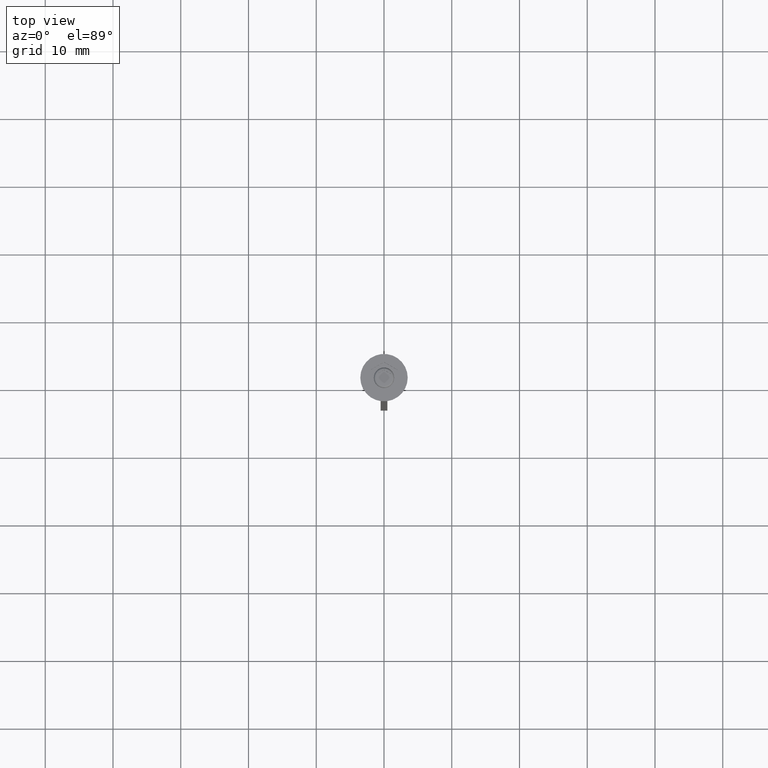
[diagram: clean part render]
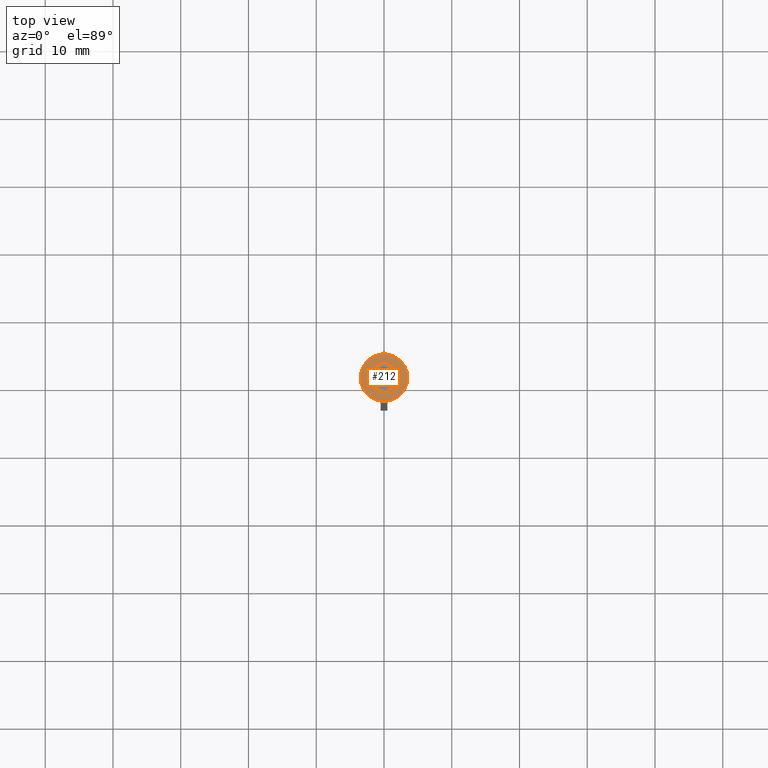
[diagram: same view with one face highlighted and labeled with its STEP entity id]
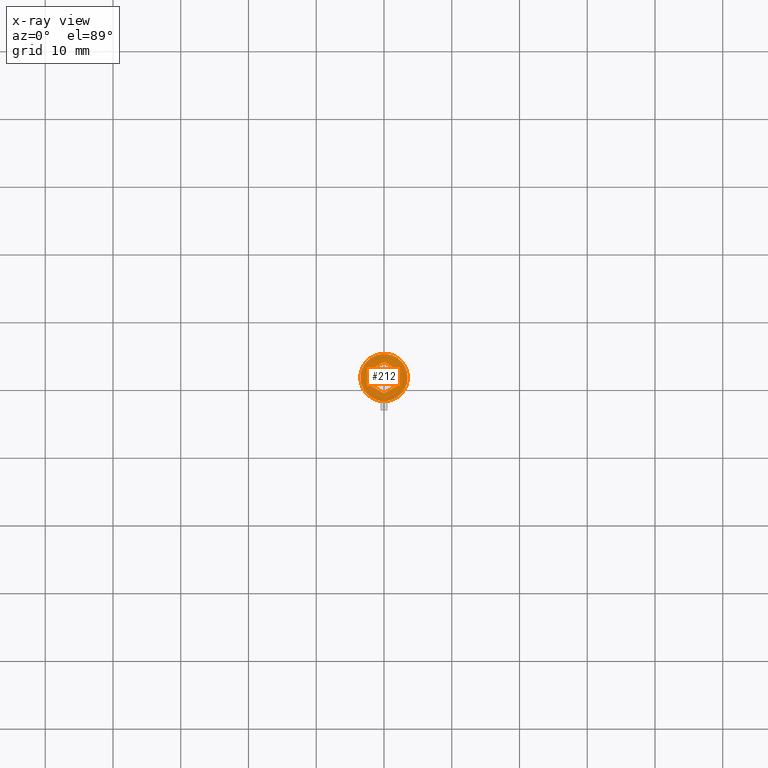
[diagram: x-ray of the same camera — body ghosted, the highlighted face saturated]
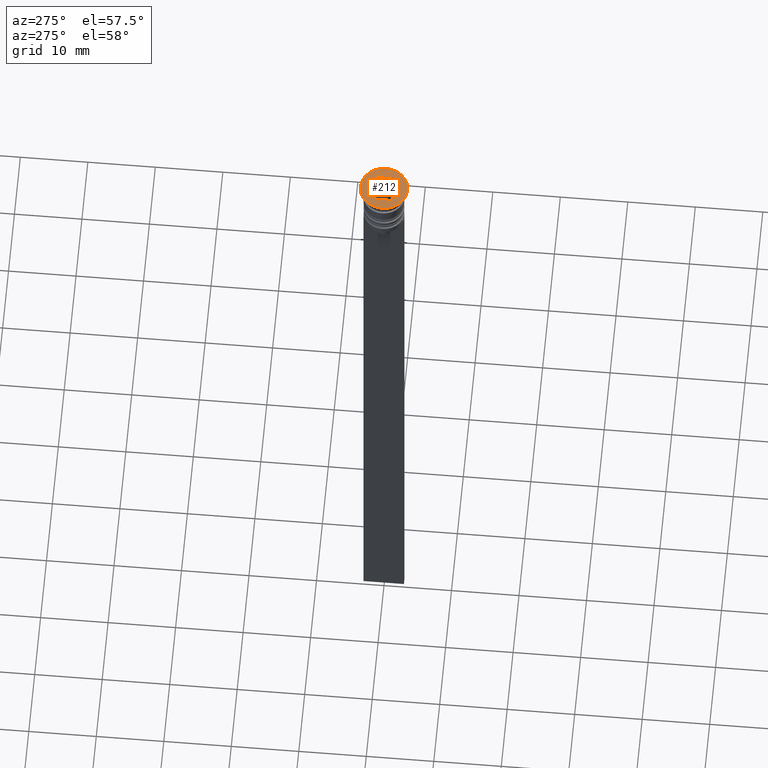
[diagram: same view with one face highlighted and labeled with its STEP entity id]
A machine part, top view. The second image highlights one B-rep face of the part: STEP entity #212.
The next image is the same camera in x-ray: the body ghosted, the highlighted face saturated — about 0% of this face is hidden behind the body in this view.
A second angle (auxiliary view) of the same face is appended — the face is thin or edge-on in the first view.
In plain terms, the highlighted planar face has unit normal (0, -0, 1).
Its self-contained STEP definition (entity closure, byte-faithful):
#12 = VECTOR ( 'NONE', #2239, 1000.000000000000000 ) ;
#28 = ORIENTED_EDGE ( 'NONE', *, *, #1354, .F. ) ;
#65 = CARTESIAN_POINT ( 'NONE',  ( 3.997386383800531884E-16, -2.309401076758503368, 0.000000000000000000 ) ) ;
#80 = ORIENTED_EDGE ( 'NONE', *, *, #418, .F. ) ;
#114 = VERTEX_POINT ( 'NONE', #1980 ) ;
#212 = ADVANCED_FACE ( 'NONE', ( #1254, #1644 ), #1620, .T. ) ;
#233 = DIRECTION ( 'NONE',  ( 0.8660254037844384856, 0.5000000000000001110, 0.000000000000000000 ) ) ;
#337 = CARTESIAN_POINT ( 'NONE',  ( 2.000000000000000000, -1.154700538379251684, 0.000000000000000000 ) ) ;
#365 = ORIENTED_EDGE ( 'NONE', *, *, #2121, .T. ) ;
#418 = EDGE_CURVE ( 'NONE', #1786, #1206, #426, .T. ) ;
#426 = LINE ( 'NONE', #1161, #568 ) ;
#439 = CARTESIAN_POINT ( 'NONE',  ( -2.000000000000000000, 1.154700538379251018, 0.000000000000000000 ) ) ;
#548 = CIRCLE ( 'NONE', #1945, 3.500000000000000000 ) ;
#568 = VECTOR ( 'NONE', #985, 1000.000000000000000 ) ;
#586 = EDGE_CURVE ( 'NONE', #819, #2107, #1991, .T. ) ;
#618 = CARTESIAN_POINT ( 'NONE',  ( -2.000000000000000000, -1.154700538379252128, 0.000000000000000000 ) ) ;
#686 = CARTESIAN_POINT ( 'NONE',  ( 0.000000000000000000, 0.000000000000000000, 0.000000000000000000 ) ) ;
#688 = VECTOR ( 'NONE', #233, 1000.000000000000227 ) ;
#691 = DIRECTION ( 'NONE',  ( 0.000000000000000000, 1.000000000000000000, 0.000000000000000000 ) ) ;
#703 = DIRECTION ( 'NONE',  ( 1.000000000000000000, 0.000000000000000000, 0.000000000000000000 ) ) ;
#714 = DIRECTION ( 'NONE',  ( 0.000000000000000000, -0.000000000000000000, 1.000000000000000000 ) ) ;
#795 = EDGE_CURVE ( 'NONE', #1389, #2147, #1683, .T. ) ;
#817 = CARTESIAN_POINT ( 'NONE',  ( 0.000000000000000000, 2.309401076758502480, 0.000000000000000000 ) ) ;
#819 = VERTEX_POINT ( 'NONE', #1535 ) ;
#852 = CIRCLE ( 'NONE', #1943, 3.500000000000000000 ) ;
#876 = LINE ( 'NONE', #337, #2267 ) ;
#922 = AXIS2_PLACEMENT_3D ( 'NONE', #1837, #714, #703 ) ;
#927 = EDGE_LOOP ( 'NONE', ( #1102, #28, #2144, #1960, #80, #2258 ) ) ;
#985 = DIRECTION ( 'NONE',  ( 0.000000000000000000, -1.000000000000000000, 0.000000000000000000 ) ) ;
#1023 = LINE ( 'NONE', #817, #12 ) ;
#1062 = DIRECTION ( 'NONE',  ( -0.000000000000000000, -0.000000000000000000, 1.000000000000000000 ) ) ;
#1102 = ORIENTED_EDGE ( 'NONE', *, *, #586, .F. ) ;
#1161 = CARTESIAN_POINT ( 'NONE',  ( -2.000000000000000000, 1.154700538379251018, 0.000000000000000000 ) ) ;
#1193 = VECTOR ( 'NONE', #2169, 1000.000000000000114 ) ;
#1195 = DIRECTION ( 'NONE',  ( 1.000000000000000000, 0.000000000000000000, 0.000000000000000000 ) ) ;
#1196 = DIRECTION ( 'NONE',  ( -0.000000000000000000, -0.000000000000000000, 1.000000000000000000 ) ) ;
#1200 = CARTESIAN_POINT ( 'NONE',  ( -3.500000000000000000, 4.286263797015736595E-16, 0.000000000000000000 ) ) ;
#1206 = VERTEX_POINT ( 'NONE', #618 ) ;
#1248 = CARTESIAN_POINT ( 'NONE',  ( 3.997386383800531884E-16, -2.309401076758503368, 0.000000000000000000 ) ) ;
#1254 = FACE_BOUND ( 'NONE', #927, .T. ) ;
#1287 = DIRECTION ( 'NONE',  ( -0.8660254037844387076, 0.4999999999999998890, 0.000000000000000000 ) ) ;
#1321 = VERTEX_POINT ( 'NONE', #1200 ) ;
#1354 = EDGE_CURVE ( 'NONE', #2147, #819, #876, .T. ) ;
#1389 = VERTEX_POINT ( 'NONE', #1248 ) ;
#1535 = CARTESIAN_POINT ( 'NONE',  ( 2.000000000000000000, 1.154700538379251240, 0.000000000000000000 ) ) ;
#1564 = DIRECTION ( 'NONE',  ( 1.000000000000000000, 0.000000000000000000, 0.000000000000000000 ) ) ;
#1592 = VECTOR ( 'NONE', #1287, 1000.000000000000000 ) ;
#1597 = EDGE_CURVE ( 'NONE', #1206, #1389, #2010, .T. ) ;
#1613 = EDGE_LOOP ( 'NONE', ( #365, #1724 ) ) ;
#1620 = PLANE ( 'NONE',  #922 ) ;
#1629 = CARTESIAN_POINT ( 'NONE',  ( 2.000000000000000000, 1.154700538379251240, 0.000000000000000000 ) ) ;
#1644 = FACE_OUTER_BOUND ( 'NONE', #1613, .T. ) ;
#1672 = EDGE_CURVE ( 'NONE', #2107, #1786, #1023, .T. ) ;
#1683 = LINE ( 'NONE', #65, #688 ) ;
#1724 = ORIENTED_EDGE ( 'NONE', *, *, #1779, .T. ) ;
#1779 = EDGE_CURVE ( 'NONE', #1321, #114, #852, .T. ) ;
#1786 = VERTEX_POINT ( 'NONE', #439 ) ;
#1837 = CARTESIAN_POINT ( 'NONE',  ( 0.000000000000000000, 0.000000000000000000, 0.000000000000000000 ) ) ;
#1839 = CARTESIAN_POINT ( 'NONE',  ( -2.000000000000000000, -1.154700538379252128, 0.000000000000000000 ) ) ;
#1899 = CARTESIAN_POINT ( 'NONE',  ( 2.000000000000000000, -1.154700538379251684, 0.000000000000000000 ) ) ;
#1943 = AXIS2_PLACEMENT_3D ( 'NONE', #2225, #1196, #1564 ) ;
#1945 = AXIS2_PLACEMENT_3D ( 'NONE', #686, #1062, #1195 ) ;
#1960 = ORIENTED_EDGE ( 'NONE', *, *, #1597, .F. ) ;
#1980 = CARTESIAN_POINT ( 'NONE',  ( 3.500000000000000000, 0.000000000000000000, 0.000000000000000000 ) ) ;
#1991 = LINE ( 'NONE', #1629, #1592 ) ;
#2010 = LINE ( 'NONE', #1839, #1193 ) ;
#2075 = CARTESIAN_POINT ( 'NONE',  ( -2.168404344971008868E-16, 2.309401076758502480, 0.000000000000000000 ) ) ;
#2107 = VERTEX_POINT ( 'NONE', #2075 ) ;
#2121 = EDGE_CURVE ( 'NONE', #114, #1321, #548, .T. ) ;
#2144 = ORIENTED_EDGE ( 'NONE', *, *, #795, .F. ) ;
#2147 = VERTEX_POINT ( 'NONE', #1899 ) ;
#2169 = DIRECTION ( 'NONE',  ( 0.8660254037844387076, -0.4999999999999997780, 0.000000000000000000 ) ) ;
#2225 = CARTESIAN_POINT ( 'NONE',  ( 0.000000000000000000, 0.000000000000000000, 0.000000000000000000 ) ) ;
#2239 = DIRECTION ( 'NONE',  ( -0.8660254037844387076, -0.4999999999999999445, 0.000000000000000000 ) ) ;
#2258 = ORIENTED_EDGE ( 'NONE', *, *, #1672, .F. ) ;
#2267 = VECTOR ( 'NONE', #691, 1000.000000000000000 ) ;